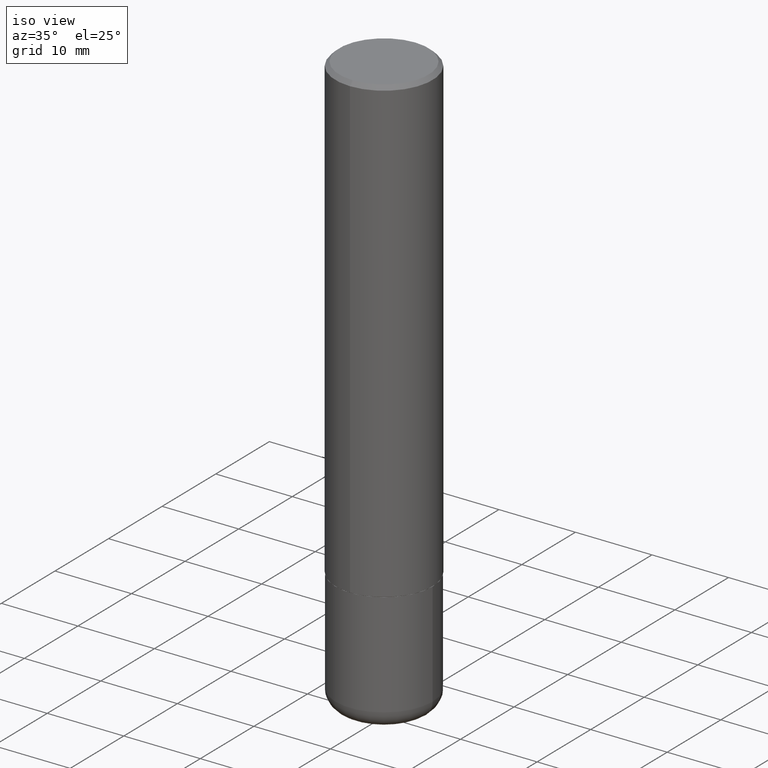
[diagram: clean part render]
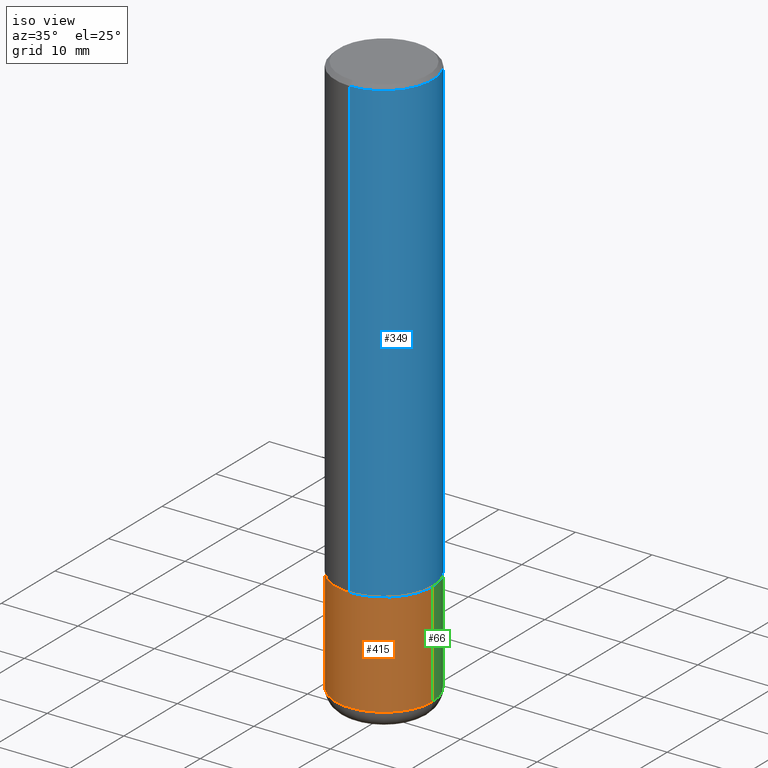
[diagram: same view with three faces highlighted in distinct colors, each labeled with its STEP entity id]
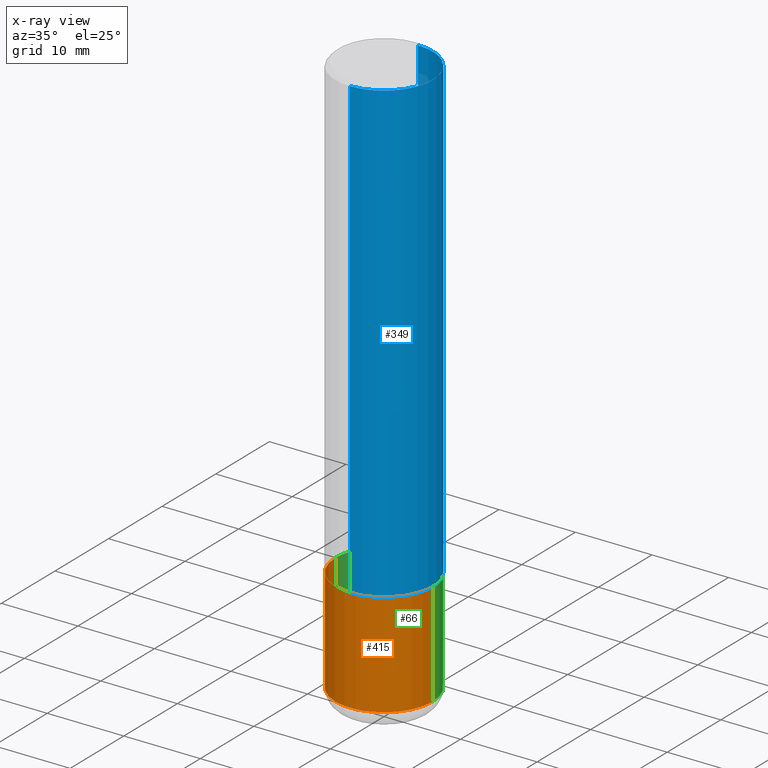
[diagram: x-ray of the same camera — body ghosted, the three highlighted faces saturated]
A machine part, iso view with three faces highlighted in distinct colors.
The next image is the same camera in x-ray (body ghosted, the three faces saturated) — at least one of them is partly hidden behind the body in this view.
Their STEP definitions:

[orange] entity #415 — the highlighted cylindrical surface (partial cylindrical patch) has radius 6.35 mm, axis along (-0, 0, 1).
#14 = LINE ( 'NONE', #205, #52 ) ;
#16 = AXIS2_PLACEMENT_3D ( 'NONE', #144, #278, #414 ) ;
#50 = VERTEX_POINT ( 'NONE', #60 ) ;
#52 = VECTOR ( 'NONE', #130, 39.37007874015748143 ) ;
#54 = EDGE_CURVE ( 'NONE', #370, #394, #230, .T. ) ;
#57 = CYLINDRICAL_SURFACE ( 'NONE', #373, 0.2500000000000000000 ) ;
#60 = CARTESIAN_POINT ( 'NONE',  ( 0.2499999999999998335, -1.190595136545512292E-14, -2.910000000000000586 ) ) ;
#107 = LINE ( 'NONE', #400, #345 ) ;
#125 = CARTESIAN_POINT ( 'NONE',  ( 0.000000000000000000, 0.000000000000000000, 0.000000000000000000 ) ) ;
#130 = DIRECTION ( 'NONE',  ( -2.445468806185136877E-29, 3.491481338843145188E-15, 1.000000000000000000 ) ) ;
#142 = EDGE_LOOP ( 'NONE', ( #215, #194, #174, #233 ) ) ;
#144 = CARTESIAN_POINT ( 'NONE',  ( 5.807988414689700538E-29, -8.292268179752471696E-15, -2.375000000000000000 ) ) ;
#147 = EDGE_CURVE ( 'NONE', #50, #394, #107, .T. ) ;
#171 = CARTESIAN_POINT ( 'NONE',  ( -0.2499999999999998335, -8.383853856633305780E-15, -2.910000000000000586 ) ) ;
#174 = ORIENTED_EDGE ( 'NONE', *, *, #147, .T. ) ;
#177 = DIRECTION ( 'NONE',  ( -2.445468806185136597E-29, 3.491481338843145583E-15, 1.000000000000000000 ) ) ;
#180 = DIRECTION ( 'NONE',  ( 1.000000000000000000, -6.982962677686266711E-15, 4.876176775795935793E-29 ) ) ;
#187 = VERTEX_POINT ( 'NONE', #171 ) ;
#194 = ORIENTED_EDGE ( 'NONE', *, *, #195, .T. ) ;
#195 = EDGE_CURVE ( 'NONE', #187, #50, #325, .T. ) ;
#203 = DIRECTION ( 'NONE',  ( -2.445468806185136877E-29, 3.491481338843145188E-15, 1.000000000000000000 ) ) ;
#205 = CARTESIAN_POINT ( 'NONE',  ( -0.2500000000000000000, 1.776356839400250465E-15, -1.229733772563726445E-29 ) ) ;
#206 = AXIS2_PLACEMENT_3D ( 'NONE', #228, #177, #306 ) ;
#207 = EDGE_CURVE ( 'NONE', #187, #370, #14, .T. ) ;
#212 = CARTESIAN_POINT ( 'NONE',  ( -0.2500000000000000000, -7.449882598492762717E-15, -2.375000000000000000 ) ) ;
#215 = ORIENTED_EDGE ( 'NONE', *, *, #207, .F. ) ;
#228 = CARTESIAN_POINT ( 'NONE',  ( 7.116314225998749245E-29, -1.016021069603355467E-14, -2.910000000000000586 ) ) ;
#230 = CIRCLE ( 'NONE', #16, 0.2500000000000000000 ) ;
#233 = ORIENTED_EDGE ( 'NONE', *, *, #54, .F. ) ;
#277 = CARTESIAN_POINT ( 'NONE',  ( 0.2500000000000000000, -1.003800884917403837E-14, -2.375000000000000000 ) ) ;
#278 = DIRECTION ( 'NONE',  ( -2.445468806185136597E-29, 3.491481338843145583E-15, 1.000000000000000000 ) ) ;
#279 = FACE_OUTER_BOUND ( 'NONE', #142, .T. ) ;
#306 = DIRECTION ( 'NONE',  ( 1.000000000000000000, -6.982962677686270655E-15, 0.000000000000000000 ) ) ;
#325 = CIRCLE ( 'NONE', #206, 0.2500000000000000000 ) ;
#345 = VECTOR ( 'NONE', #203, 39.37007874015748143 ) ;
#370 = VERTEX_POINT ( 'NONE', #212 ) ;
#373 = AXIS2_PLACEMENT_3D ( 'NONE', #125, #416, #180 ) ;
#394 = VERTEX_POINT ( 'NONE', #277 ) ;
#400 = CARTESIAN_POINT ( 'NONE',  ( 0.2500000000000000000, -1.745740669421566678E-15, 1.219044193948983948E-29 ) ) ;
#414 = DIRECTION ( 'NONE',  ( 1.000000000000000000, -6.982962677686266711E-15, 0.000000000000000000 ) ) ;
#415 = ADVANCED_FACE ( 'NONE', ( #279 ), #57, .T. ) ;
#416 = DIRECTION ( 'NONE',  ( -2.445468806185136597E-29, 3.491481338843145583E-15, 1.000000000000000000 ) ) ;

[blue] entity #349 — the highlighted cylindrical surface (partial cylindrical patch) has radius 6.35 mm, axis along (-0, 0, 1).
#4 = VECTOR ( 'NONE', #28, 39.37007874015748143 ) ;
#5 = CIRCLE ( 'NONE', #305, 0.2500000000000000000 ) ;
#15 = VERTEX_POINT ( 'NONE', #150 ) ;
#20 = VECTOR ( 'NONE', #389, 39.37007874015748143 ) ;
#23 = EDGE_CURVE ( 'NONE', #15, #108, #239, .T. ) ;
#28 = DIRECTION ( 'NONE',  ( -2.444433044876418787E-29, 3.492964607989102264E-15, 1.000000000000000000 ) ) ;
#30 = DIRECTION ( 'NONE',  ( -6.982962677686265922E-15, -1.000000000000000000, 3.500180241882337261E-15 ) ) ;
#38 = CARTESIAN_POINT ( 'NONE',  ( 5.803084048536618741E-29, -8.292297979366129591E-15, -2.374000000000000110 ) ) ;
#44 = ORIENTED_EDGE ( 'NONE', *, *, #252, .T. ) ;
#48 = CARTESIAN_POINT ( 'NONE',  ( 1.776356839400280836E-15, 0.2499999999999919786, -2.374000000000000998 ) ) ;
#56 = CARTESIAN_POINT ( 'NONE',  ( -1.745740669421567467E-15, -0.2500000000000001110, 8.732411519972759604E-16 ) ) ;
#65 = DIRECTION ( 'NONE',  ( -2.444433044876418787E-29, 3.492964607989102264E-15, 1.000000000000000000 ) ) ;
#73 = EDGE_CURVE ( 'NONE', #15, #256, #119, .T. ) ;
#77 = AXIS2_PLACEMENT_3D ( 'NONE', #38, #65, #214 ) ;
#92 = DIRECTION ( 'NONE',  ( -6.982962677686266711E-15, -1.000000000000000000, 3.492964607989102264E-15 ) ) ;
#108 = VERTEX_POINT ( 'NONE', #124 ) ;
#119 = CIRCLE ( 'NONE', #77, 0.2500000000000002776 ) ;
#124 = CARTESIAN_POINT ( 'NONE',  ( -1.715124499442882299E-15, -0.2500000000000000555, -0.01999999999999918163 ) ) ;
#148 = EDGE_LOOP ( 'NONE', ( #346, #44, #172, #225 ) ) ;
#150 = CARTESIAN_POINT ( 'NONE',  ( -1.745740669421510471E-15, -0.2500000000000085487, -2.373999999999999222 ) ) ;
#172 = ORIENTED_EDGE ( 'NONE', *, *, #332, .F. ) ;
#189 = CARTESIAN_POINT ( 'NONE',  ( 1.776356839400251254E-15, 0.2500000000000001110, -8.732411519972759604E-16 ) ) ;
#208 = CARTESIAN_POINT ( 'NONE',  ( 0.000000000000000000, 0.000000000000000000, 0.000000000000000000 ) ) ;
#211 = CARTESIAN_POINT ( 'NONE',  ( 4.888866089752851166E-31, -6.985929215978223263E-17, -0.02000000000000005593 ) ) ;
#214 = DIRECTION ( 'NONE',  ( -6.982962677686265922E-15, -1.000000000000000000, 3.278217592397112312E-15 ) ) ;
#225 = ORIENTED_EDGE ( 'NONE', *, *, #23, .F. ) ;
#239 = LINE ( 'NONE', #56, #4 ) ;
#247 = CARTESIAN_POINT ( 'NONE',  ( 1.745740669421566875E-15, 0.2499999999999999167, -0.02000000000000093023 ) ) ;
#252 = EDGE_CURVE ( 'NONE', #256, #302, #328, .T. ) ;
#256 = VERTEX_POINT ( 'NONE', #48 ) ;
#274 = FACE_OUTER_BOUND ( 'NONE', #148, .T. ) ;
#291 = AXIS2_PLACEMENT_3D ( 'NONE', #208, #377, #92 ) ;
#302 = VERTEX_POINT ( 'NONE', #247 ) ;
#305 = AXIS2_PLACEMENT_3D ( 'NONE', #211, #312, #30 ) ;
#312 = DIRECTION ( 'NONE',  ( -2.444433044876418787E-29, 3.492964607989102264E-15, 1.000000000000000000 ) ) ;
#328 = LINE ( 'NONE', #189, #20 ) ;
#332 = EDGE_CURVE ( 'NONE', #108, #302, #5, .T. ) ;
#346 = ORIENTED_EDGE ( 'NONE', *, *, #73, .T. ) ;
#347 = CYLINDRICAL_SURFACE ( 'NONE', #291, 0.2500000000000001110 ) ;
#349 = ADVANCED_FACE ( 'NONE', ( #274 ), #347, .T. ) ;
#377 = DIRECTION ( 'NONE',  ( -2.444433044876418787E-29, 3.492964607989102264E-15, 1.000000000000000000 ) ) ;
#389 = DIRECTION ( 'NONE',  ( -2.444433044876418787E-29, 3.492964607989102264E-15, 1.000000000000000000 ) ) ;

[green] entity #66 — the highlighted cylindrical surface (partial cylindrical patch) has radius 6.35 mm, axis along (-0, 0, 1).
#2 = DIRECTION ( 'NONE',  ( 1.000000000000000000, -6.982962677686266711E-15, 4.876176775795935793E-29 ) ) ;
#14 = LINE ( 'NONE', #205, #52 ) ;
#31 = DIRECTION ( 'NONE',  ( -2.445468806185136597E-29, 3.491481338843145583E-15, 1.000000000000000000 ) ) ;
#33 = AXIS2_PLACEMENT_3D ( 'NONE', #323, #293, #46 ) ;
#46 = DIRECTION ( 'NONE',  ( 1.000000000000000000, -6.982962677686266711E-15, 0.000000000000000000 ) ) ;
#50 = VERTEX_POINT ( 'NONE', #60 ) ;
#52 = VECTOR ( 'NONE', #130, 39.37007874015748143 ) ;
#60 = CARTESIAN_POINT ( 'NONE',  ( 0.2499999999999998335, -1.190595136545512292E-14, -2.910000000000000586 ) ) ;
#66 = ADVANCED_FACE ( 'NONE', ( #122 ), #288, .T. ) ;
#82 = ORIENTED_EDGE ( 'NONE', *, *, #147, .F. ) ;
#107 = LINE ( 'NONE', #400, #345 ) ;
#122 = FACE_OUTER_BOUND ( 'NONE', #265, .T. ) ;
#130 = DIRECTION ( 'NONE',  ( -2.445468806185136877E-29, 3.491481338843145188E-15, 1.000000000000000000 ) ) ;
#147 = EDGE_CURVE ( 'NONE', #50, #394, #107, .T. ) ;
#171 = CARTESIAN_POINT ( 'NONE',  ( -0.2499999999999998335, -8.383853856633305780E-15, -2.910000000000000586 ) ) ;
#173 = AXIS2_PLACEMENT_3D ( 'NONE', #348, #351, #2 ) ;
#175 = ORIENTED_EDGE ( 'NONE', *, *, #286, .T. ) ;
#187 = VERTEX_POINT ( 'NONE', #171 ) ;
#199 = ORIENTED_EDGE ( 'NONE', *, *, #207, .T. ) ;
#203 = DIRECTION ( 'NONE',  ( -2.445468806185136877E-29, 3.491481338843145188E-15, 1.000000000000000000 ) ) ;
#205 = CARTESIAN_POINT ( 'NONE',  ( -0.2500000000000000000, 1.776356839400250465E-15, -1.229733772563726445E-29 ) ) ;
#207 = EDGE_CURVE ( 'NONE', #187, #370, #14, .T. ) ;
#212 = CARTESIAN_POINT ( 'NONE',  ( -0.2500000000000000000, -7.449882598492762717E-15, -2.375000000000000000 ) ) ;
#218 = AXIS2_PLACEMENT_3D ( 'NONE', #407, #31, #307 ) ;
#258 = ORIENTED_EDGE ( 'NONE', *, *, #267, .F. ) ;
#265 = EDGE_LOOP ( 'NONE', ( #175, #199, #258, #82 ) ) ;
#267 = EDGE_CURVE ( 'NONE', #394, #370, #282, .T. ) ;
#277 = CARTESIAN_POINT ( 'NONE',  ( 0.2500000000000000000, -1.003800884917403837E-14, -2.375000000000000000 ) ) ;
#282 = CIRCLE ( 'NONE', #33, 0.2500000000000000000 ) ;
#286 = EDGE_CURVE ( 'NONE', #50, #187, #311, .T. ) ;
#288 = CYLINDRICAL_SURFACE ( 'NONE', #173, 0.2500000000000000000 ) ;
#293 = DIRECTION ( 'NONE',  ( -2.445468806185136597E-29, 3.491481338843145583E-15, 1.000000000000000000 ) ) ;
#307 = DIRECTION ( 'NONE',  ( 1.000000000000000000, -6.982962677686270655E-15, 0.000000000000000000 ) ) ;
#311 = CIRCLE ( 'NONE', #218, 0.2500000000000000000 ) ;
#323 = CARTESIAN_POINT ( 'NONE',  ( 5.807988414689700538E-29, -8.292268179752471696E-15, -2.375000000000000000 ) ) ;
#345 = VECTOR ( 'NONE', #203, 39.37007874015748143 ) ;
#348 = CARTESIAN_POINT ( 'NONE',  ( 0.000000000000000000, 0.000000000000000000, 0.000000000000000000 ) ) ;
#351 = DIRECTION ( 'NONE',  ( -2.445468806185136597E-29, 3.491481338843145583E-15, 1.000000000000000000 ) ) ;
#370 = VERTEX_POINT ( 'NONE', #212 ) ;
#394 = VERTEX_POINT ( 'NONE', #277 ) ;
#400 = CARTESIAN_POINT ( 'NONE',  ( 0.2500000000000000000, -1.745740669421566678E-15, 1.219044193948983948E-29 ) ) ;
#407 = CARTESIAN_POINT ( 'NONE',  ( 7.116314225998749245E-29, -1.016021069603355467E-14, -2.910000000000000586 ) ) ;